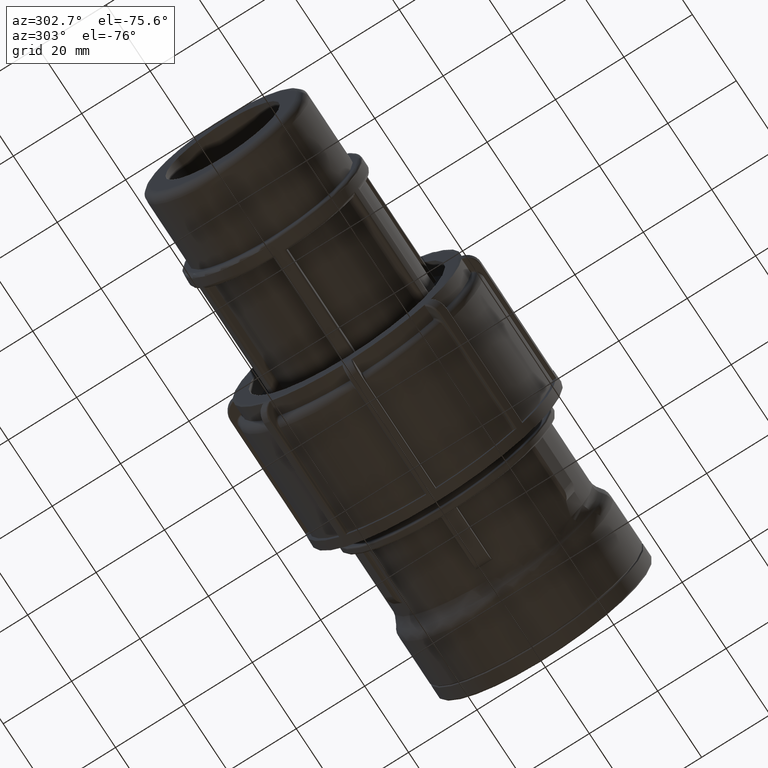
[diagram: clean part render]
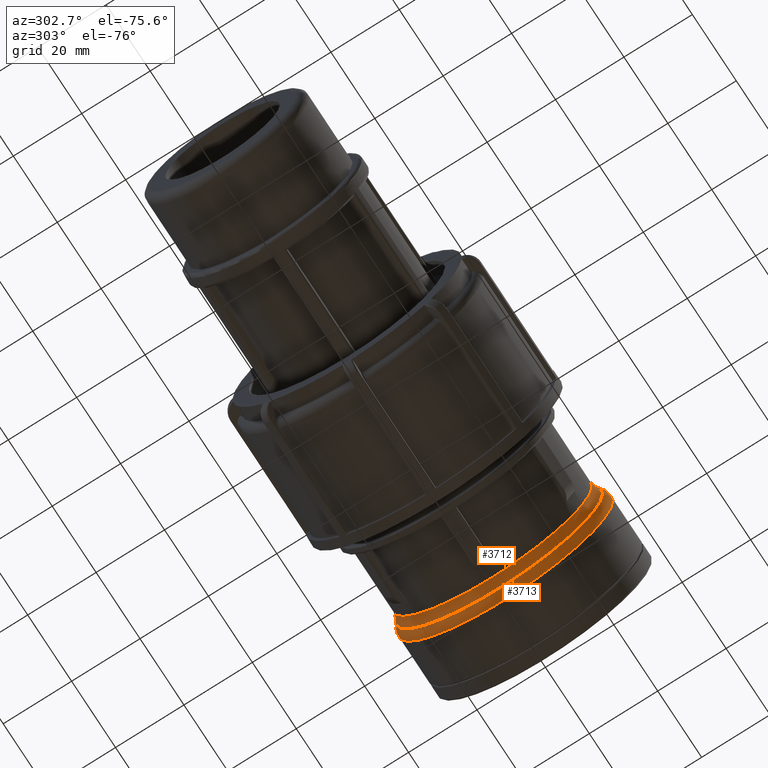
[diagram: same view with one multi-face feature highlighted, each face labeled with its STEP entity id]
A machine part, auxiliary view. The highlighted faces form ONE feature: a constant-radius fillet chain: 2 tangent blend faces with common blend radius 4.4845 mm. The faces share edges in the B-rep.
Their STEP definitions:
[1] entity #3712 (Torus):
#55=FACE_BOUND('',#966,.T.);
#740=FACE_OUTER_BOUND('',#965,.T.);
#965=EDGE_LOOP('',(#2863));
#966=EDGE_LOOP('',(#2864));
#1349=CIRCLE('',#3953,29.14925);
#1360=CIRCLE('',#3999,30.270375);
#1644=VERTEX_POINT('',#5881);
#1668=VERTEX_POINT('',#6157);
#2064=EDGE_CURVE('',#1644,#1644,#1349,.T.);
#2117=EDGE_CURVE('',#1668,#1668,#1360,.T.);
#2863=ORIENTED_EDGE('',*,*,#2064,.T.);
#2864=ORIENTED_EDGE('',*,*,#2117,.T.);
#3630=TOROIDAL_SURFACE('',#3998,33.63375,4.4845);
#3712=ADVANCED_FACE('',(#740,#55),#3630,.F.);
#3953=AXIS2_PLACEMENT_3D('',#5882,#4514,#4515);
#3998=AXIS2_PLACEMENT_3D('',#6156,#4632,#4633);
#3999=AXIS2_PLACEMENT_3D('',#6158,#4634,#4635);
#4514=DIRECTION('center_axis',(1.,0.,0.));
#4515=DIRECTION('ref_axis',(0.,1.,-6.12323399573677E-17));
#4632=DIRECTION('center_axis',(1.,0.,0.));
#4633=DIRECTION('ref_axis',(0.,0.,-1.));
#4634=DIRECTION('center_axis',(-1.,0.,0.));
#4635=DIRECTION('ref_axis',(0.,1.,-6.12323399573677E-17));
#5881=CARTESIAN_POINT('',(-24.0487449539633,-29.14925,-1.7848767855023E-15));
#5882=CARTESIAN_POINT('Origin',(-24.0487449539633,0.,0.));
#6156=CARTESIAN_POINT('Origin',(-24.0487449539633,0.,0.));
#6157=CARTESIAN_POINT('',(-21.082527015346,-30.270375,5.56057767791101E-15));
#6158=CARTESIAN_POINT('Origin',(-21.082527015346,0.,0.));
[2] entity #3713 (Torus):
#56=FACE_BOUND('',#968,.T.);
#741=FACE_OUTER_BOUND('',#967,.T.);
#967=EDGE_LOOP('',(#2865));
#968=EDGE_LOOP('',(#2866));
#1360=CIRCLE('',#3999,30.270375);
#1361=CIRCLE('',#4001,31.3915);
#1668=VERTEX_POINT('',#6157);
#1669=VERTEX_POINT('',#6160);
#2117=EDGE_CURVE('',#1668,#1668,#1360,.T.);
#2118=EDGE_CURVE('',#1669,#1669,#1361,.T.);
#2865=ORIENTED_EDGE('',*,*,#2117,.F.);
#2866=ORIENTED_EDGE('',*,*,#2118,.T.);
#3631=TOROIDAL_SURFACE('',#4000,26.907,4.4845);
#3713=ADVANCED_FACE('',(#741,#56),#3631,.T.);
#3999=AXIS2_PLACEMENT_3D('',#6158,#4634,#4635);
#4000=AXIS2_PLACEMENT_3D('',#6159,#4636,#4637);
#4001=AXIS2_PLACEMENT_3D('',#6161,#4638,#4639);
#4634=DIRECTION('center_axis',(-1.,0.,0.));
#4635=DIRECTION('ref_axis',(0.,1.,-6.12323399573677E-17));
#4636=DIRECTION('center_axis',(1.,0.,0.));
#4637=DIRECTION('ref_axis',(0.,1.,-1.85604082780806E-16));
#4638=DIRECTION('center_axis',(-1.,0.,0.));
#4639=DIRECTION('ref_axis',(0.,1.,-1.85604082780806E-16));
#6157=CARTESIAN_POINT('',(-21.082527015346,-30.270375,5.56057767791101E-15));
#6158=CARTESIAN_POINT('Origin',(-21.082527015346,0.,0.));
#6159=CARTESIAN_POINT('Origin',(-18.1163090767287,0.,0.));
#6160=CARTESIAN_POINT('',(-18.1163090767287,-31.3915,9.67074056415709E-15));
#6161=CARTESIAN_POINT('Origin',(-18.1163090767287,0.,0.));